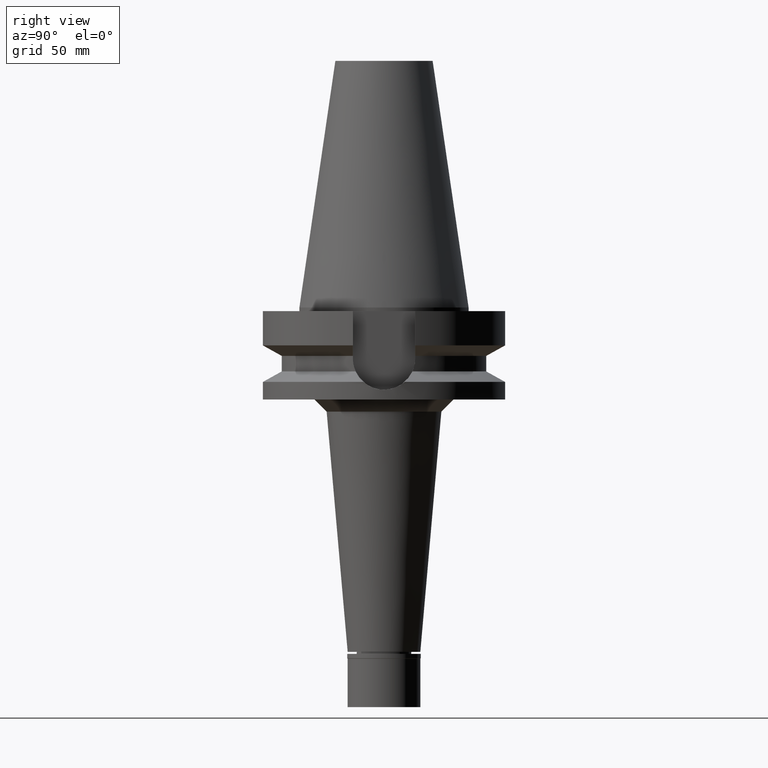
[diagram: clean part render]
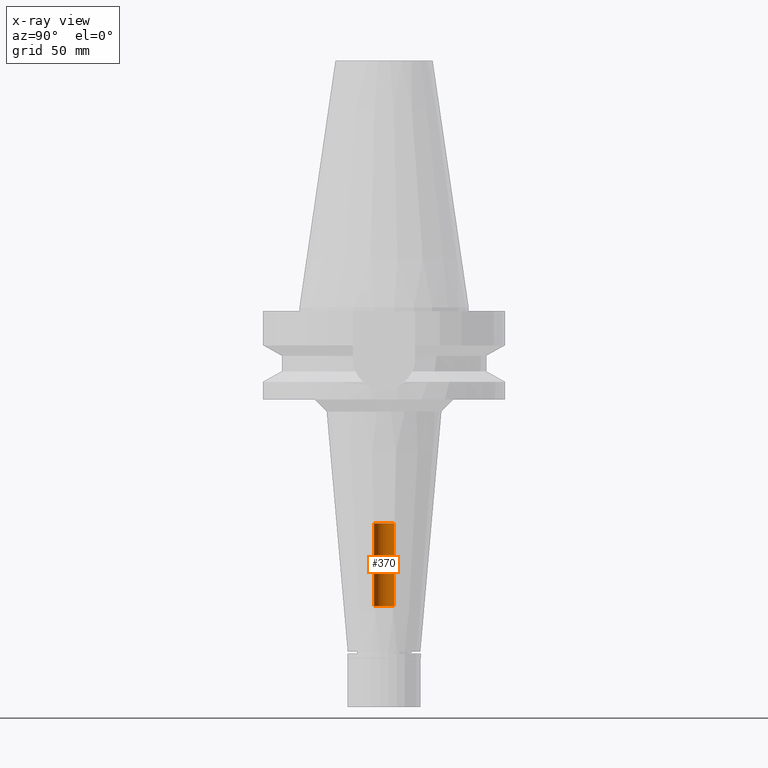
[diagram: x-ray — body ghosted, one internal face saturated and labeled with its STEP entity id]
A machine part, right view, then the same camera in x-ray: the body is ghosted and one INTERNAL B-rep face — a face not visible from any outside direction — is saturated and labeled: STEP entity #370.
In plain terms, the highlighted cylindrical surface (edge-blend (fillet) strip) has radius 4.2 mm, axis along (0, 0, -1).
Its self-contained STEP definition (entity closure, byte-faithful):
#50 = DIRECTION ( 'NONE',  ( 0.0000000000000000000, 0.0000000000000000000, 1.000000000000000000 ) ) ;
#104 = AXIS2_PLACEMENT_3D ( 'NONE', #374, #2074, #673 ) ;
#111 = DIRECTION ( 'NONE',  ( 0.0000000000000000000, -1.000000000000000000, 0.0000000000000000000 ) ) ;
#230 = CARTESIAN_POINT ( 'NONE',  ( 0.0000000000000000000, 4.200000000000000178, -123.3000000000000114 ) ) ;
#261 = EDGE_CURVE ( 'NONE', #369, #1812, #318, .T. ) ;
#276 = DIRECTION ( 'NONE',  ( 0.0000000000000000000, 0.0000000000000000000, 1.000000000000000000 ) ) ;
#318 = LINE ( 'NONE', #816, #413 ) ;
#324 = LINE ( 'NONE', #1814, #3072 ) ;
#369 = VERTEX_POINT ( 'NONE', #906 ) ;
#370 = ADVANCED_FACE ( 'NONE', ( #2353 ), #604, .F. ) ;
#374 = CARTESIAN_POINT ( 'NONE',  ( 0.0000000000000000000, 2.630602556908000006E-14, -89.20000000000000284 ) ) ;
#400 = ORIENTED_EDGE ( 'NONE', *, *, #2030, .T. ) ;
#413 = VECTOR ( 'NONE', #50, 1000.000000000000000 ) ;
#570 = EDGE_CURVE ( 'NONE', #369, #1249, #2271, .T. ) ;
#604 = CYLINDRICAL_SURFACE ( 'NONE', #3163, 4.200000000000000178 ) ;
#673 = DIRECTION ( 'NONE',  ( 0.0000000000000000000, 1.000000000000000000, 0.0000000000000000000 ) ) ;
#792 = CARTESIAN_POINT ( 'NONE',  ( 0.0000000000000000000, 4.200000000000000178, -89.20000000000000284 ) ) ;
#816 = CARTESIAN_POINT ( 'NONE',  ( 0.0000000000000000000, -4.200000000000000178, -123.3000000000000114 ) ) ;
#884 = AXIS2_PLACEMENT_3D ( 'NONE', #1951, #1209, #1935 ) ;
#906 = CARTESIAN_POINT ( 'NONE',  ( 0.0000000000000000000, -4.200000000000000178, -123.3000000000000114 ) ) ;
#1209 = DIRECTION ( 'NONE',  ( 0.0000000000000000000, 0.0000000000000000000, -1.000000000000000000 ) ) ;
#1249 = VERTEX_POINT ( 'NONE', #230 ) ;
#1602 = EDGE_LOOP ( 'NONE', ( #400, #2886, #1668, #1789 ) ) ;
#1618 = DIRECTION ( 'NONE',  ( 0.0000000000000000000, 0.0000000000000000000, -1.000000000000000000 ) ) ;
#1668 = ORIENTED_EDGE ( 'NONE', *, *, #570, .T. ) ;
#1789 = ORIENTED_EDGE ( 'NONE', *, *, #3005, .T. ) ;
#1812 = VERTEX_POINT ( 'NONE', #2467 ) ;
#1814 = CARTESIAN_POINT ( 'NONE',  ( 0.0000000000000000000, 4.200000000000000178, -123.3000000000000114 ) ) ;
#1935 = DIRECTION ( 'NONE',  ( 0.0000000000000000000, -1.000000000000000000, 0.0000000000000000000 ) ) ;
#1951 = CARTESIAN_POINT ( 'NONE',  ( 0.0000000000000000000, 2.630602556908000006E-14, -123.3000000000000114 ) ) ;
#2010 = CIRCLE ( 'NONE', #104, 4.200000000000000178 ) ;
#2030 = EDGE_CURVE ( 'NONE', #2996, #1812, #2010, .T. ) ;
#2074 = DIRECTION ( 'NONE',  ( 0.0000000000000000000, 0.0000000000000000000, 1.000000000000000000 ) ) ;
#2271 = CIRCLE ( 'NONE', #884, 4.200000000000000178 ) ;
#2353 = FACE_OUTER_BOUND ( 'NONE', #1602, .T. ) ;
#2467 = CARTESIAN_POINT ( 'NONE',  ( 0.0000000000000000000, -4.200000000000000178, -89.20000000000000284 ) ) ;
#2874 = CARTESIAN_POINT ( 'NONE',  ( 0.0000000000000000000, 2.630602556908000006E-14, 114.8050000000000068 ) ) ;
#2886 = ORIENTED_EDGE ( 'NONE', *, *, #261, .F. ) ;
#2996 = VERTEX_POINT ( 'NONE', #792 ) ;
#3005 = EDGE_CURVE ( 'NONE', #1249, #2996, #324, .T. ) ;
#3072 = VECTOR ( 'NONE', #276, 1000.000000000000000 ) ;
#3163 = AXIS2_PLACEMENT_3D ( 'NONE', #2874, #1618, #111 ) ;